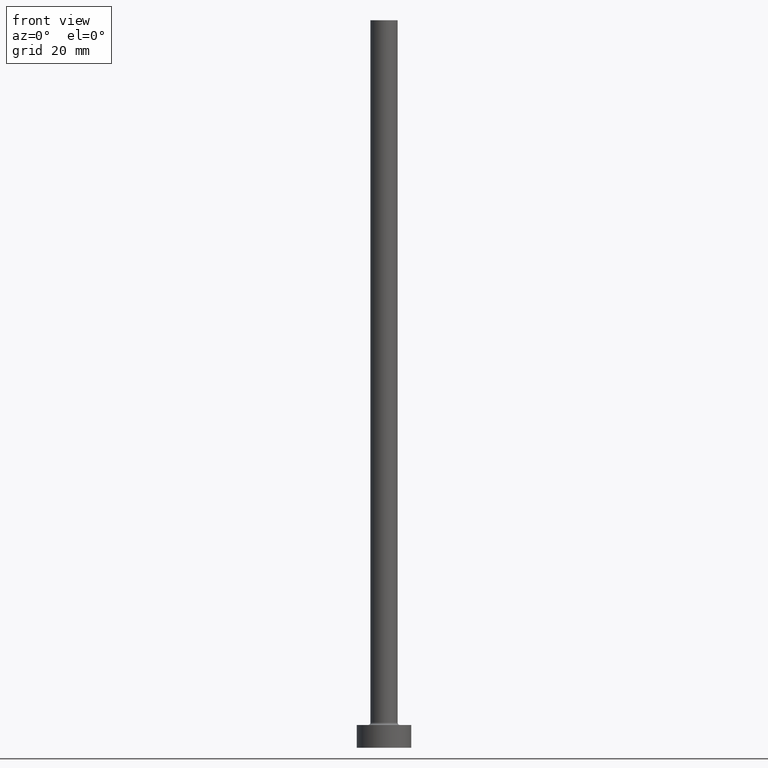
[diagram: clean part render]
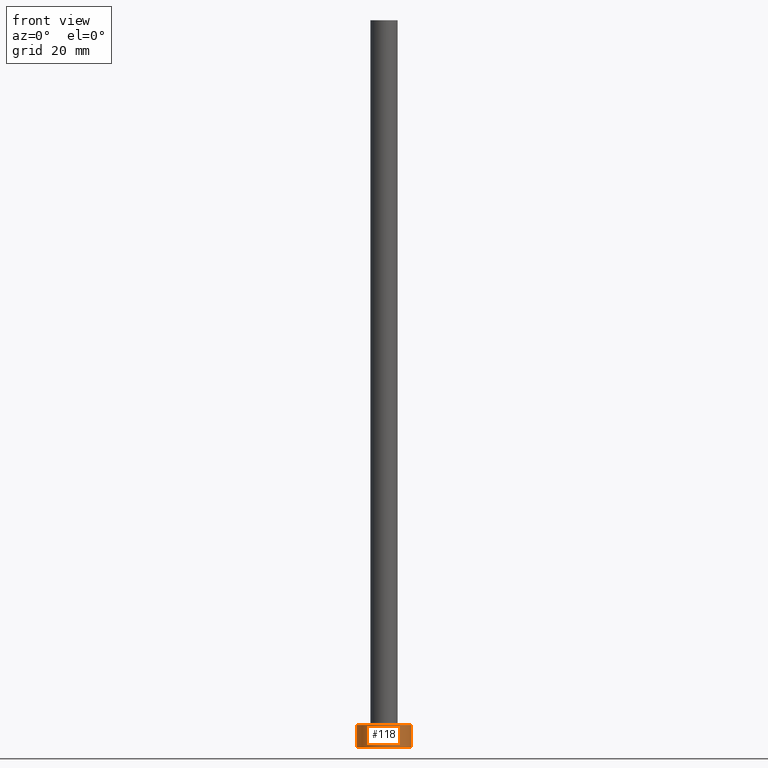
[diagram: same view with one face highlighted and labeled with its STEP entity id]
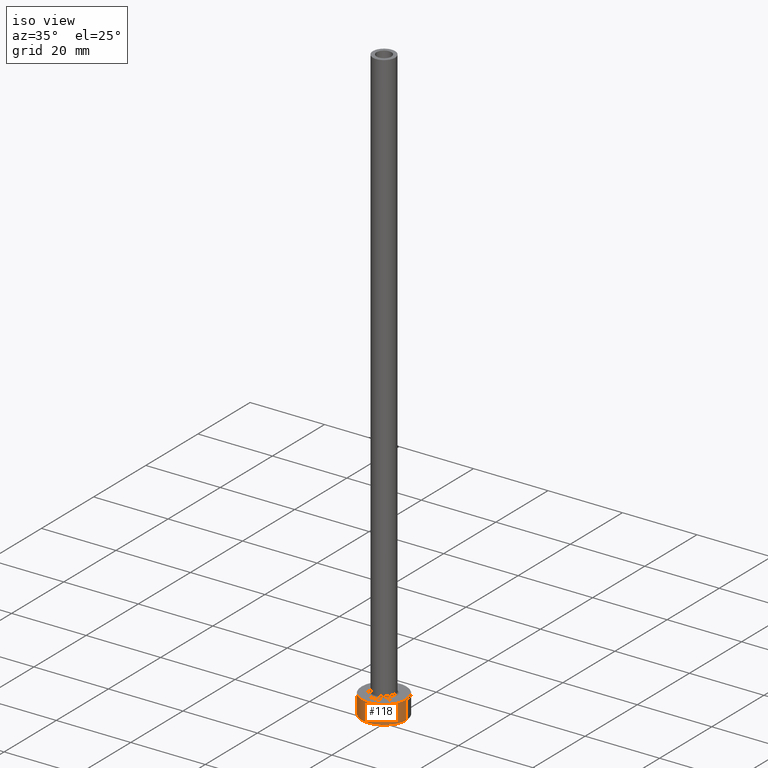
[diagram: same view with one face highlighted and labeled with its STEP entity id]
A machine part, front view. The second image highlights one B-rep face of the part: STEP entity #118.
A second angle (iso view) of the same face is appended — the face is thin or edge-on in the first view.
In plain terms, the highlighted cylindrical surface (edge-blend (fillet) strip) has radius 6 mm, axis along (-0, -0, -1).
Its self-contained STEP definition (entity closure, byte-faithful):
#1 = DIRECTION ( 'NONE',  ( 0.000000000000000000, 0.000000000000000000, 1.000000000000000000 ) ) ;
#2 = VECTOR ( 'NONE', #407, 1000.000000000000000 ) ;
#25 = LINE ( 'NONE', #175, #194 ) ;
#27 = DIRECTION ( 'NONE',  ( -0.000000000000000000, -0.000000000000000000, -1.000000000000000000 ) ) ;
#31 = EDGE_CURVE ( 'NONE', #275, #448, #247, .T. ) ;
#34 = AXIS2_PLACEMENT_3D ( 'NONE', #83, #227, #298 ) ;
#49 = FACE_OUTER_BOUND ( 'NONE', #134, .T. ) ;
#50 = CIRCLE ( 'NONE', #414, 6.000000000000000888 ) ;
#83 = CARTESIAN_POINT ( 'NONE',  ( 0.000000000000000000, 0.000000000000000000, 5.000000000000000000 ) ) ;
#91 = VERTEX_POINT ( 'NONE', #111 ) ;
#106 = CARTESIAN_POINT ( 'NONE',  ( -6.000000000000000888, 0.000000000000000000, 5.000000000000000000 ) ) ;
#111 = CARTESIAN_POINT ( 'NONE',  ( -6.000000000000000888, 0.000000000000000000, 0.000000000000000000 ) ) ;
#113 = ORIENTED_EDGE ( 'NONE', *, *, #203, .T. ) ;
#118 = ADVANCED_FACE ( 'NONE', ( #49 ), #433, .T. ) ;
#134 = EDGE_LOOP ( 'NONE', ( #250, #205, #113, #235 ) ) ;
#137 = EDGE_CURVE ( 'NONE', #448, #271, #234, .T. ) ;
#173 = DIRECTION ( 'NONE',  ( 1.000000000000000000, 0.000000000000000000, 0.000000000000000000 ) ) ;
#175 = CARTESIAN_POINT ( 'NONE',  ( -6.000000000000000888, 0.000000000000000000, 5.000000000000000000 ) ) ;
#185 = CARTESIAN_POINT ( 'NONE',  ( 0.000000000000000000, 0.000000000000000000, 0.000000000000000000 ) ) ;
#194 = VECTOR ( 'NONE', #27, 1000.000000000000000 ) ;
#203 = EDGE_CURVE ( 'NONE', #275, #91, #25, .T. ) ;
#205 = ORIENTED_EDGE ( 'NONE', *, *, #31, .F. ) ;
#227 = DIRECTION ( 'NONE',  ( -0.000000000000000000, -0.000000000000000000, -1.000000000000000000 ) ) ;
#234 = LINE ( 'NONE', #445, #2 ) ;
#235 = ORIENTED_EDGE ( 'NONE', *, *, #338, .T. ) ;
#247 = CIRCLE ( 'NONE', #382, 6.000000000000000888 ) ;
#250 = ORIENTED_EDGE ( 'NONE', *, *, #137, .F. ) ;
#251 = DIRECTION ( 'NONE',  ( 0.000000000000000000, 0.000000000000000000, 1.000000000000000000 ) ) ;
#259 = CARTESIAN_POINT ( 'NONE',  ( 6.000000000000000888, 7.347880794884120722E-16, 5.000000000000000000 ) ) ;
#271 = VERTEX_POINT ( 'NONE', #289 ) ;
#275 = VERTEX_POINT ( 'NONE', #106 ) ;
#289 = CARTESIAN_POINT ( 'NONE',  ( 6.000000000000000888, 7.347880794884120722E-16, 0.000000000000000000 ) ) ;
#298 = DIRECTION ( 'NONE',  ( -1.000000000000000000, 0.000000000000000000, 0.000000000000000000 ) ) ;
#307 = DIRECTION ( 'NONE',  ( 1.000000000000000000, 0.000000000000000000, 0.000000000000000000 ) ) ;
#338 = EDGE_CURVE ( 'NONE', #91, #271, #50, .T. ) ;
#382 = AXIS2_PLACEMENT_3D ( 'NONE', #455, #251, #173 ) ;
#407 = DIRECTION ( 'NONE',  ( -0.000000000000000000, -0.000000000000000000, -1.000000000000000000 ) ) ;
#414 = AXIS2_PLACEMENT_3D ( 'NONE', #185, #1, #307 ) ;
#433 = CYLINDRICAL_SURFACE ( 'NONE', #34, 6.000000000000000888 ) ;
#445 = CARTESIAN_POINT ( 'NONE',  ( 6.000000000000000888, 7.347880794884120722E-16, 5.000000000000000000 ) ) ;
#448 = VERTEX_POINT ( 'NONE', #259 ) ;
#455 = CARTESIAN_POINT ( 'NONE',  ( 0.000000000000000000, 0.000000000000000000, 5.000000000000000000 ) ) ;